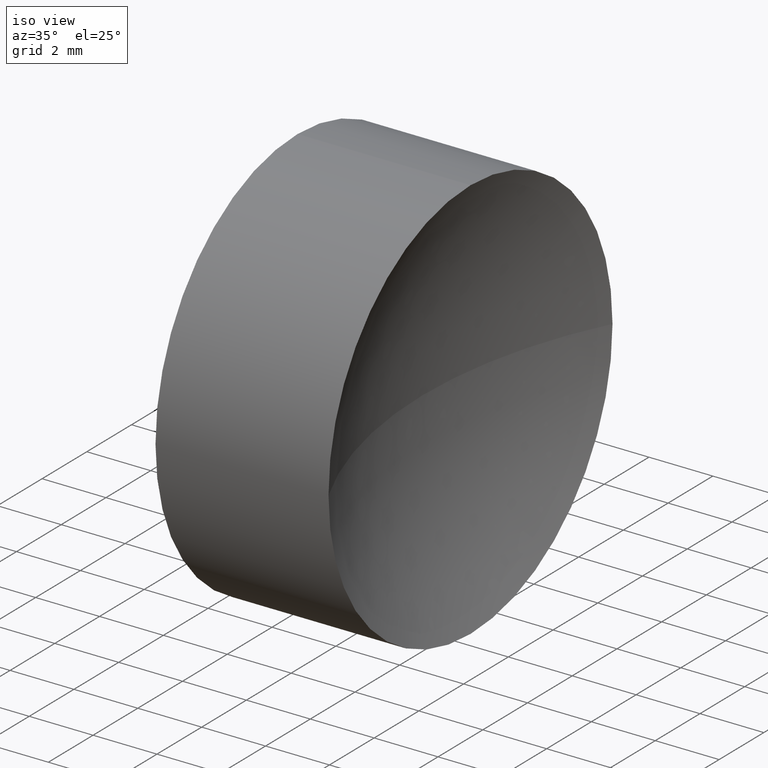
[diagram: clean part render]
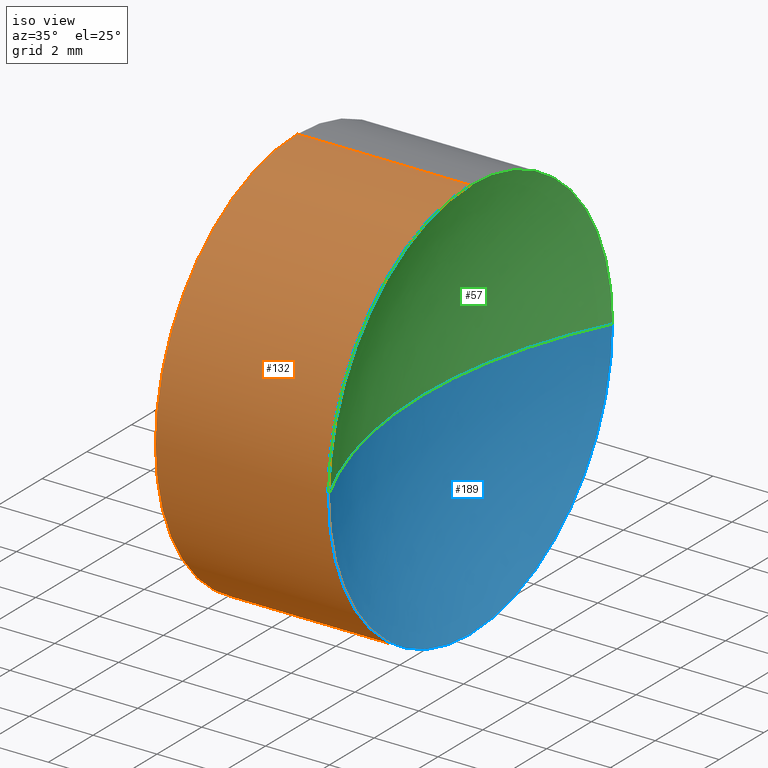
[diagram: same view with three faces highlighted in distinct colors, each labeled with its STEP entity id]
A machine part, iso view with three faces highlighted in distinct colors.
Their STEP definitions:

[orange] entity #132 — the highlighted cylindrical surface (partial cylindrical patch) has radius 6.35 mm, axis along (-1, -0, -0).
#2 = ORIENTED_EDGE ( 'NONE', *, *, #211, .F. ) ;
#3 = AXIS2_PLACEMENT_3D ( 'NONE', #77, #135, #45 ) ;
#4 = CIRCLE ( 'NONE', #13, 6.349999999999997900 ) ;
#13 = AXIS2_PLACEMENT_3D ( 'NONE', #151, #107, #164 ) ;
#19 = ORIENTED_EDGE ( 'NONE', *, *, #114, .T. ) ;
#20 = EDGE_CURVE ( 'NONE', #199, #101, #87, .T. ) ;
#22 = VERTEX_POINT ( 'NONE', #152 ) ;
#25 = EDGE_CURVE ( 'NONE', #221, #160, #4, .T. ) ;
#30 = CARTESIAN_POINT ( 'NONE',  ( 45.33679999805279000, 26.08904114919495900, 0.0000000000000000000 ) ) ;
#33 = CARTESIAN_POINT ( 'NONE',  ( 50.75364397030717400, 19.73904114919495000, -7.776507174585700100E-016 ) ) ;
#35 = ORIENTED_EDGE ( 'NONE', *, *, #20, .T. ) ;
#39 = CARTESIAN_POINT ( 'NONE',  ( 42.44986111413682300, 26.08904114919495900, 6.349999999999997900 ) ) ;
#40 = CARTESIAN_POINT ( 'NONE',  ( 42.44986111413682300, 26.08904114919495900, -6.349999999999997900 ) ) ;
#45 = DIRECTION ( 'NONE',  ( 0.0000000000000000000, 0.0000000000000000000, 1.000000000000000000 ) ) ;
#46 = CARTESIAN_POINT ( 'NONE',  ( 50.75364397030717400, 26.08904114919495900, 0.0000000000000000000 ) ) ;
#56 = VERTEX_POINT ( 'NONE', #185 ) ;
#70 = EDGE_CURVE ( 'NONE', #22, #56, #220, .T. ) ;
#77 = CARTESIAN_POINT ( 'NONE',  ( 42.44986111413682300, 26.08904114919495900, 0.0000000000000000000 ) ) ;
#79 = DIRECTION ( 'NONE',  ( 0.0000000000000000000, 0.0000000000000000000, 1.000000000000000000 ) ) ;
#87 = CIRCLE ( 'NONE', #216, 6.350000000000005000 ) ;
#88 = DIRECTION ( 'NONE',  ( -1.000000000000000000, -0.0000000000000000000, -0.0000000000000000000 ) ) ;
#89 = CARTESIAN_POINT ( 'NONE',  ( 50.75364397030717400, 26.08904114919495900, 0.0000000000000000000 ) ) ;
#90 = VECTOR ( 'NONE', #88, 1000.000000000000000 ) ;
#91 = ORIENTED_EDGE ( 'NONE', *, *, #137, .T. ) ;
#96 = DIRECTION ( 'NONE',  ( -1.000000000000000000, -0.0000000000000000000, -0.0000000000000000000 ) ) ;
#100 = CIRCLE ( 'NONE', #170, 6.350000000000005000 ) ;
#101 = VERTEX_POINT ( 'NONE', #126 ) ;
#104 = FACE_OUTER_BOUND ( 'NONE', #215, .T. ) ;
#107 = DIRECTION ( 'NONE',  ( -1.000000000000000000, -0.0000000000000000000, -0.0000000000000000000 ) ) ;
#113 = CYLINDRICAL_SURFACE ( 'NONE', #3, 6.349999999999997900 ) ;
#114 = EDGE_CURVE ( 'NONE', #101, #160, #115, .T. ) ;
#115 = LINE ( 'NONE', #39, #90 ) ;
#124 = DIRECTION ( 'NONE',  ( 0.0000000000000000000, 0.0000000000000000000, 1.000000000000000000 ) ) ;
#126 = CARTESIAN_POINT ( 'NONE',  ( 50.75364397030717400, 26.08904114919495900, 6.350000000000005000 ) ) ;
#127 = CIRCLE ( 'NONE', #196, 6.349999999999997900 ) ;
#132 = ADVANCED_FACE ( 'NONE', ( #104 ), #113, .T. ) ;
#134 = CARTESIAN_POINT ( 'NONE',  ( 45.33679999805279000, 26.08904114919495900, 6.349999999999997900 ) ) ;
#135 = DIRECTION ( 'NONE',  ( -1.000000000000000000, -0.0000000000000000000, -0.0000000000000000000 ) ) ;
#137 = EDGE_CURVE ( 'NONE', #22, #199, #100, .T. ) ;
#145 = ORIENTED_EDGE ( 'NONE', *, *, #25, .F. ) ;
#151 = CARTESIAN_POINT ( 'NONE',  ( 45.33679999805279000, 26.08904114919495900, 0.0000000000000000000 ) ) ;
#152 = CARTESIAN_POINT ( 'NONE',  ( 50.75364397030717400, 26.08904114919495900, -6.350000000000005000 ) ) ;
#156 = DIRECTION ( 'NONE',  ( -1.000000000000000000, -0.0000000000000000000, -0.0000000000000000000 ) ) ;
#157 = VECTOR ( 'NONE', #217, 1000.000000000000000 ) ;
#160 = VERTEX_POINT ( 'NONE', #134 ) ;
#164 = DIRECTION ( 'NONE',  ( 0.0000000000000000000, 0.0000000000000000000, 1.000000000000000000 ) ) ;
#167 = DIRECTION ( 'NONE',  ( 0.0000000000000000000, 0.0000000000000000000, 1.000000000000000000 ) ) ;
#170 = AXIS2_PLACEMENT_3D ( 'NONE', #46, #96, #167 ) ;
#185 = CARTESIAN_POINT ( 'NONE',  ( 45.33679999805279000, 26.08904114919495900, -6.349999999999997900 ) ) ;
#188 = CARTESIAN_POINT ( 'NONE',  ( 45.33679999805279000, 19.73904114919496100, -7.776507174585688200E-016 ) ) ;
#196 = AXIS2_PLACEMENT_3D ( 'NONE', #30, #156, #79 ) ;
#199 = VERTEX_POINT ( 'NONE', #33 ) ;
#202 = DIRECTION ( 'NONE',  ( -1.000000000000000000, -0.0000000000000000000, -0.0000000000000000000 ) ) ;
#211 = EDGE_CURVE ( 'NONE', #56, #221, #127, .T. ) ;
#215 = EDGE_LOOP ( 'NONE', ( #229, #91, #35, #19, #145, #2 ) ) ;
#216 = AXIS2_PLACEMENT_3D ( 'NONE', #89, #202, #124 ) ;
#217 = DIRECTION ( 'NONE',  ( -1.000000000000000000, -0.0000000000000000000, -0.0000000000000000000 ) ) ;
#220 = LINE ( 'NONE', #40, #157 ) ;
#221 = VERTEX_POINT ( 'NONE', #188 ) ;
#229 = ORIENTED_EDGE ( 'NONE', *, *, #70, .F. ) ;

[blue] entity #189 — the highlighted spherical surface has radius 14.12 mm.
#6 = DIRECTION ( 'NONE',  ( -1.000000000000000000, -0.0000000000000000000, -0.0000000000000000000 ) ) ;
#12 = DIRECTION ( 'NONE',  ( 0.0000000000000000000, 0.0000000000000000000, -1.000000000000000000 ) ) ;
#15 = CARTESIAN_POINT ( 'NONE',  ( 50.75364397030717400, 32.43904114919496400, 0.0000000000000000000 ) ) ;
#18 = CIRCLE ( 'NONE', #230, 14.11999999999999400 ) ;
#22 = VERTEX_POINT ( 'NONE', #152 ) ;
#24 = AXIS2_PLACEMENT_3D ( 'NONE', #78, #155, #226 ) ;
#33 = CARTESIAN_POINT ( 'NONE',  ( 50.75364397030717400, 19.73904114919495000, -7.776507174585700100E-016 ) ) ;
#38 = VERTEX_POINT ( 'NONE', #41 ) ;
#41 = CARTESIAN_POINT ( 'NONE',  ( 49.24522198417997700, 26.08904114919495500, 0.0000000000000000000 ) ) ;
#46 = CARTESIAN_POINT ( 'NONE',  ( 50.75364397030717400, 26.08904114919495900, 0.0000000000000000000 ) ) ;
#47 = ORIENTED_EDGE ( 'NONE', *, *, #165, .F. ) ;
#55 = AXIS2_PLACEMENT_3D ( 'NONE', #76, #12, #169 ) ;
#76 = CARTESIAN_POINT ( 'NONE',  ( 63.36522198417997500, 26.08904114919495500, 0.0000000000000000000 ) ) ;
#78 = CARTESIAN_POINT ( 'NONE',  ( 63.36522198417997500, 26.08904114919495500, 0.0000000000000000000 ) ) ;
#93 = CARTESIAN_POINT ( 'NONE',  ( 63.36522198417997500, 26.08904114919495500, 0.0000000000000000000 ) ) ;
#96 = DIRECTION ( 'NONE',  ( -1.000000000000000000, -0.0000000000000000000, -0.0000000000000000000 ) ) ;
#97 = DIRECTION ( 'NONE',  ( 0.0000000000000000000, 1.224646799147353200E-016, -1.000000000000000000 ) ) ;
#100 = CIRCLE ( 'NONE', #170, 6.350000000000005000 ) ;
#102 = FACE_OUTER_BOUND ( 'NONE', #120, .T. ) ;
#106 = ORIENTED_EDGE ( 'NONE', *, *, #108, .F. ) ;
#108 = EDGE_CURVE ( 'NONE', #154, #22, #142, .T. ) ;
#116 = ORIENTED_EDGE ( 'NONE', *, *, #180, .T. ) ;
#120 = EDGE_LOOP ( 'NONE', ( #47, #205, #106, #116 ) ) ;
#137 = EDGE_CURVE ( 'NONE', #22, #199, #100, .T. ) ;
#142 = CIRCLE ( 'NONE', #144, 6.350000000000005000 ) ;
#144 = AXIS2_PLACEMENT_3D ( 'NONE', #163, #6, #146 ) ;
#146 = DIRECTION ( 'NONE',  ( 0.0000000000000000000, 0.0000000000000000000, 1.000000000000000000 ) ) ;
#149 = CIRCLE ( 'NONE', #24, 14.11999999999999400 ) ;
#152 = CARTESIAN_POINT ( 'NONE',  ( 50.75364397030717400, 26.08904114919495900, -6.350000000000005000 ) ) ;
#154 = VERTEX_POINT ( 'NONE', #15 ) ;
#155 = DIRECTION ( 'NONE',  ( 0.0000000000000000000, 0.0000000000000000000, 1.000000000000000000 ) ) ;
#163 = CARTESIAN_POINT ( 'NONE',  ( 50.75364397030717400, 26.08904114919495900, 0.0000000000000000000 ) ) ;
#165 = EDGE_CURVE ( 'NONE', #199, #38, #18, .T. ) ;
#167 = DIRECTION ( 'NONE',  ( 0.0000000000000000000, 0.0000000000000000000, 1.000000000000000000 ) ) ;
#169 = DIRECTION ( 'NONE',  ( 0.0000000000000000000, 1.000000000000000000, 0.0000000000000000000 ) ) ;
#170 = AXIS2_PLACEMENT_3D ( 'NONE', #46, #96, #167 ) ;
#173 = SPHERICAL_SURFACE ( 'NONE', #55, 14.11999999999999400 ) ;
#180 = EDGE_CURVE ( 'NONE', #154, #38, #149, .T. ) ;
#189 = ADVANCED_FACE ( 'NONE', ( #102 ), #173, .F. ) ;
#191 = DIRECTION ( 'NONE',  ( 0.0000000000000000000, 1.000000000000000000, 1.224646799147353200E-016 ) ) ;
#199 = VERTEX_POINT ( 'NONE', #33 ) ;
#205 = ORIENTED_EDGE ( 'NONE', *, *, #137, .F. ) ;
#226 = DIRECTION ( 'NONE',  ( 1.000000000000000000, 0.0000000000000000000, 0.0000000000000000000 ) ) ;
#230 = AXIS2_PLACEMENT_3D ( 'NONE', #93, #97, #191 ) ;

[green] entity #57 — the highlighted spherical surface has radius 14.12 mm.
#5 = EDGE_CURVE ( 'NONE', #101, #154, #141, .T. ) ;
#8 = DIRECTION ( 'NONE',  ( 0.0000000000000000000, 0.0000000000000000000, -1.000000000000000000 ) ) ;
#15 = CARTESIAN_POINT ( 'NONE',  ( 50.75364397030717400, 32.43904114919496400, 0.0000000000000000000 ) ) ;
#18 = CIRCLE ( 'NONE', #230, 14.11999999999999400 ) ;
#20 = EDGE_CURVE ( 'NONE', #199, #101, #87, .T. ) ;
#24 = AXIS2_PLACEMENT_3D ( 'NONE', #78, #155, #226 ) ;
#28 = DIRECTION ( 'NONE',  ( 0.0000000000000000000, 0.0000000000000000000, 1.000000000000000000 ) ) ;
#33 = CARTESIAN_POINT ( 'NONE',  ( 50.75364397030717400, 19.73904114919495000, -7.776507174585700100E-016 ) ) ;
#38 = VERTEX_POINT ( 'NONE', #41 ) ;
#41 = CARTESIAN_POINT ( 'NONE',  ( 49.24522198417997700, 26.08904114919495500, 0.0000000000000000000 ) ) ;
#43 = ORIENTED_EDGE ( 'NONE', *, *, #180, .F. ) ;
#53 = AXIS2_PLACEMENT_3D ( 'NONE', #58, #8, #148 ) ;
#57 = ADVANCED_FACE ( 'NONE', ( #162 ), #214, .F. ) ;
#58 = CARTESIAN_POINT ( 'NONE',  ( 63.36522198417997500, 26.08904114919495500, 0.0000000000000000000 ) ) ;
#68 = EDGE_LOOP ( 'NONE', ( #150, #143, #43, #201 ) ) ;
#72 = DIRECTION ( 'NONE',  ( -1.000000000000000000, -0.0000000000000000000, -0.0000000000000000000 ) ) ;
#78 = CARTESIAN_POINT ( 'NONE',  ( 63.36522198417997500, 26.08904114919495500, 0.0000000000000000000 ) ) ;
#87 = CIRCLE ( 'NONE', #216, 6.350000000000005000 ) ;
#89 = CARTESIAN_POINT ( 'NONE',  ( 50.75364397030717400, 26.08904114919495900, 0.0000000000000000000 ) ) ;
#93 = CARTESIAN_POINT ( 'NONE',  ( 63.36522198417997500, 26.08904114919495500, 0.0000000000000000000 ) ) ;
#97 = DIRECTION ( 'NONE',  ( 0.0000000000000000000, 1.224646799147353200E-016, -1.000000000000000000 ) ) ;
#101 = VERTEX_POINT ( 'NONE', #126 ) ;
#124 = DIRECTION ( 'NONE',  ( 0.0000000000000000000, 0.0000000000000000000, 1.000000000000000000 ) ) ;
#126 = CARTESIAN_POINT ( 'NONE',  ( 50.75364397030717400, 26.08904114919495900, 6.350000000000005000 ) ) ;
#141 = CIRCLE ( 'NONE', #159, 6.350000000000005000 ) ;
#143 = ORIENTED_EDGE ( 'NONE', *, *, #165, .T. ) ;
#148 = DIRECTION ( 'NONE',  ( 0.0000000000000000000, 1.000000000000000000, 0.0000000000000000000 ) ) ;
#149 = CIRCLE ( 'NONE', #24, 14.11999999999999400 ) ;
#150 = ORIENTED_EDGE ( 'NONE', *, *, #20, .F. ) ;
#154 = VERTEX_POINT ( 'NONE', #15 ) ;
#155 = DIRECTION ( 'NONE',  ( 0.0000000000000000000, 0.0000000000000000000, 1.000000000000000000 ) ) ;
#159 = AXIS2_PLACEMENT_3D ( 'NONE', #161, #72, #28 ) ;
#161 = CARTESIAN_POINT ( 'NONE',  ( 50.75364397030717400, 26.08904114919495900, 0.0000000000000000000 ) ) ;
#162 = FACE_OUTER_BOUND ( 'NONE', #68, .T. ) ;
#165 = EDGE_CURVE ( 'NONE', #199, #38, #18, .T. ) ;
#180 = EDGE_CURVE ( 'NONE', #154, #38, #149, .T. ) ;
#191 = DIRECTION ( 'NONE',  ( 0.0000000000000000000, 1.000000000000000000, 1.224646799147353200E-016 ) ) ;
#199 = VERTEX_POINT ( 'NONE', #33 ) ;
#201 = ORIENTED_EDGE ( 'NONE', *, *, #5, .F. ) ;
#202 = DIRECTION ( 'NONE',  ( -1.000000000000000000, -0.0000000000000000000, -0.0000000000000000000 ) ) ;
#214 = SPHERICAL_SURFACE ( 'NONE', #53, 14.11999999999999400 ) ;
#216 = AXIS2_PLACEMENT_3D ( 'NONE', #89, #202, #124 ) ;
#226 = DIRECTION ( 'NONE',  ( 1.000000000000000000, 0.0000000000000000000, 0.0000000000000000000 ) ) ;
#230 = AXIS2_PLACEMENT_3D ( 'NONE', #93, #97, #191 ) ;